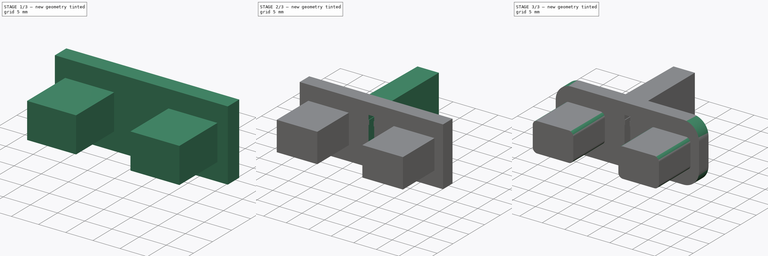
[diagram: build sequence overview — one tinted view per stage of 3, left to right]
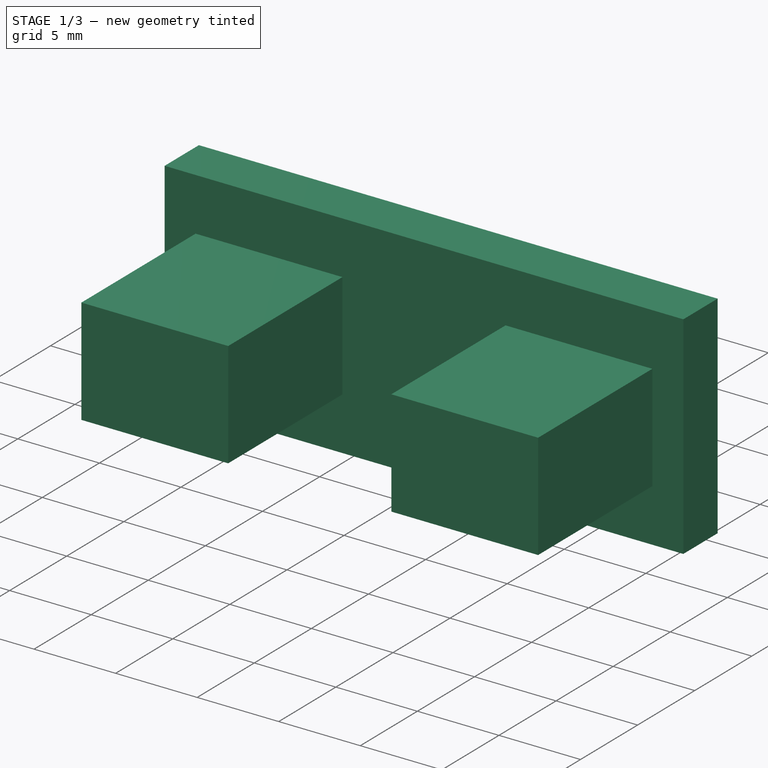
[diagram: stage 1 of 3 — iso view after this stage's code; geometry added in this stage tinted green]
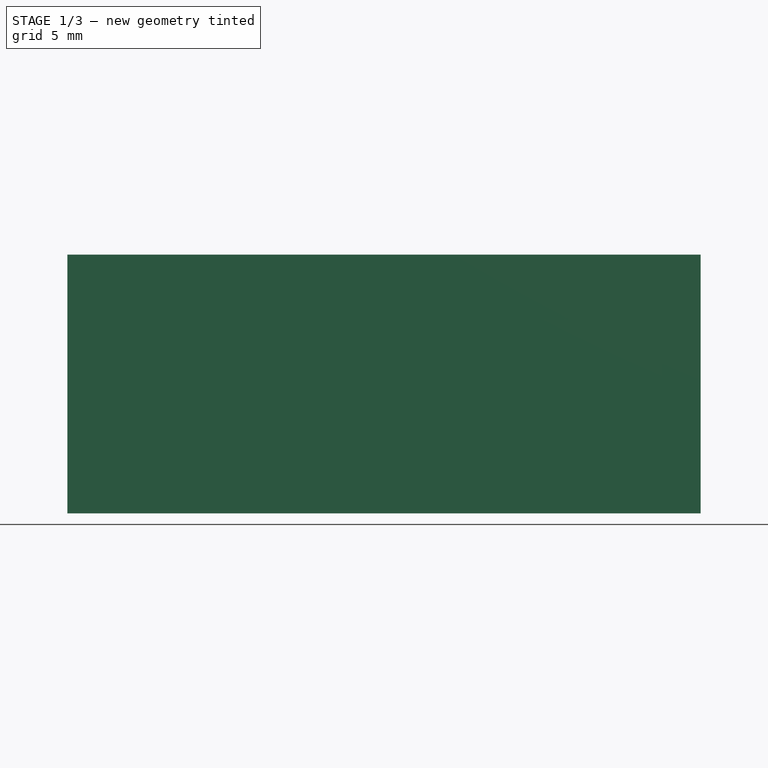
[diagram: stage 1 of 3 — front view after this stage's code; geometry added in this stage tinted green]
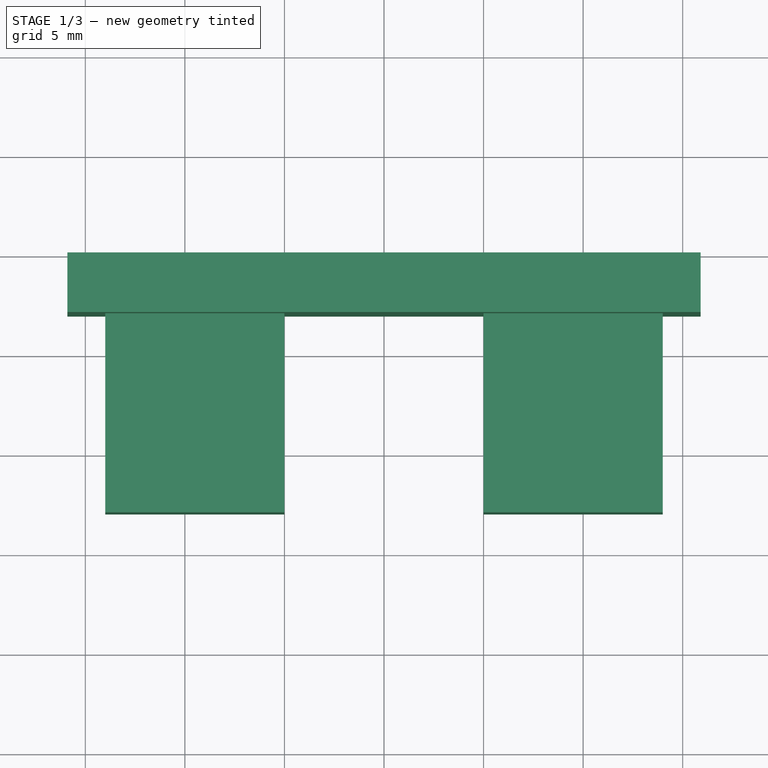
[diagram: stage 1 of 3 — top view after this stage's code; geometry added in this stage tinted green]
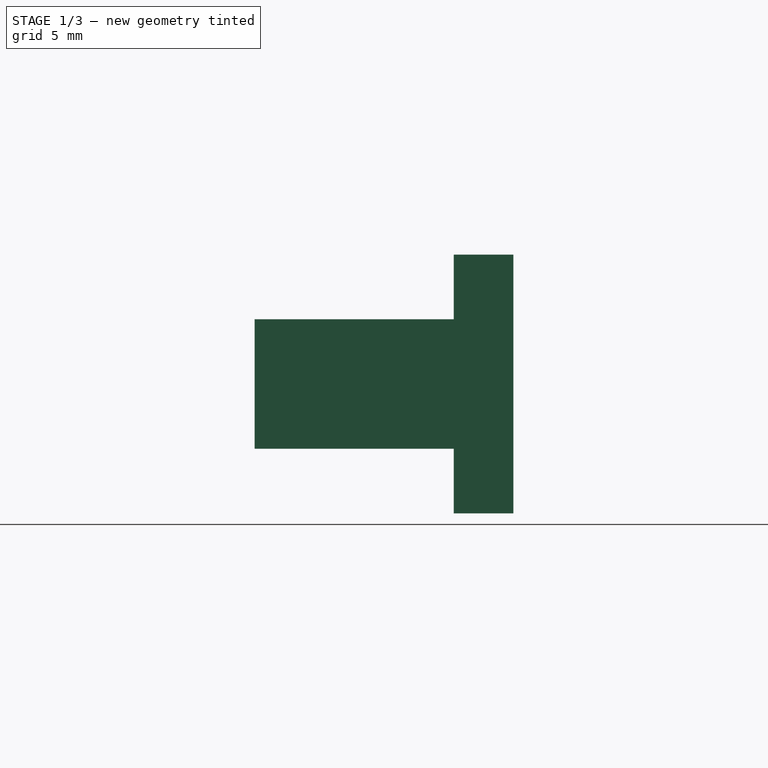
[diagram: stage 1 of 3 — right view after this stage's code; geometry added in this stage tinted green]
FCSTD DOCUMENT  (FreeCAD 1.0R39109 (Git))
Label: BoutonGrillePain
License: All rights reserved
LicenseURL: http://en.wikipedia.org/wiki/All_rights_reserved
objects: Sketcher::SketchObject×4, PartDesign::Pad×3, PartDesign::Fillet×2, PartDesign::Pocket×1, PartDesign::Body×1
note: 27 computed .brp shape members not serialized (recipe doc carries the construction recipe); baked Part::Feature solids carry a one-line shape summary decoded from their .brp

FEATURE [Sketcher::SketchObject] Sketch
  ArcFitTolerance = 1e-06
  AttachmentSupport = -> [XZ_Plane]
  FullyConstrained = true
  MakeInternals = false
  MapMode = 5
  Placement = pos=(0,0,0) rot=(1,0,0;1.5708rad)
  sketch-geometry (5):
    g0: LineSegment StartX=-15.9 StartY=-6.5 StartZ=0 EndX=15.9 EndY=-6.5 EndZ=0
    g1: LineSegment StartX=15.9 StartY=-6.5 StartZ=0 EndX=15.9 EndY=6.5 EndZ=0
    g2: LineSegment StartX=15.9 StartY=6.5 StartZ=0 EndX=-15.9 EndY=6.5 EndZ=0
    g3: LineSegment StartX=-15.9 StartY=6.5 StartZ=0 EndX=-15.9 EndY=-6.5 EndZ=0
    g4: GeomPoint [constr] X=0 Y=0 Z=0
  constraints (12):
    c: Coincident(g0,g1)
    c: Coincident(g1,g2)
    c: Coincident(g2,g3)
    c: Coincident(g3,g0)
    c: Horizontal(g0)
    c: Horizontal(g2)
    c: Vertical(g1)
    c: Vertical(g3)
    c: Symmetric(g2,g0,g4)
    c: Coincident(g4,g-1)
    c: DistanceY(g1,g1) = 13
    c: DistanceX(g0,g0) = 31.8
FEATURE [PartDesign::Pad] Pad
  Direction = (0,-1,2e-16)
  Length = 3
  Length2 = 10
  Placement = pos=(0,0,0) rot=(1,0,0;1.5708rad)
  Profile = -> Sketch
  ReferenceAxis = -> Sketch [N_Axis]
  Suppressed = false
  Type = 0
FEATURE [Sketcher::SketchObject] Sketch001
  ArcFitTolerance = 1e-06
  AttachmentSupport = -> [Pad]
  ExternalGeometry = -> [Pad]
  FullyConstrained = true
  MakeInternals = false
  MapMode = 5
  Placement = pos=(0,-3,0) rot=(1,0,0;1.5708rad)
  sketch-geometry (8):
    g0: LineSegment StartX=-14 StartY=3.25 StartZ=0 EndX=-14 EndY=-3.25 EndZ=0
    g1: LineSegment StartX=-14 StartY=-3.25 StartZ=0 EndX=-5 EndY=-3.25 EndZ=0
    g2: LineSegment StartX=-5 StartY=-3.25 StartZ=0 EndX=-5 EndY=3.25 EndZ=0
    g3: LineSegment StartX=-5 StartY=3.25 StartZ=0 EndX=-14 EndY=3.25 EndZ=0
    g4: LineSegment StartX=14 StartY=3.25 StartZ=0 EndX=5 EndY=3.25 EndZ=0
    g5: LineSegment StartX=5 StartY=3.25 StartZ=0 EndX=5 EndY=-3.25 EndZ=0
    g6: LineSegment StartX=5 StartY=-3.25 StartZ=0 EndX=14 EndY=-3.25 EndZ=0
    g7: LineSegment StartX=14 StartY=-3.25 StartZ=0 EndX=14 EndY=3.25 EndZ=0
  constraints (23):
    c: Coincident(g0,g1)
    c: Coincident(g1,g2)
    c: Coincident(g2,g3)
    c: Coincident(g3,g0)
    c: Vertical(g2)
    c: Horizontal(g1)
    c: Horizontal(g3)
    c: Distance(g0,g2) = 9
    c: Coincident(g4,g5)
    c: Coincident(g5,g6)
    c: Horizontal(g4)
    c: Horizontal(g6)
    c: Vertical(g5)
    c: Vertical(g7)
    c: Horizontal(g1,g5)
    c: Equal(g3,g4)
    c: Coincident(g4,g7)
    c: Coincident(g6,g7)
    c: DistanceY(g0,g0) = 6.5
    c: Horizontal(g2,g4)
    c: Symmetric(g1,g4,g-1)
    c: Vertical(g0)
    c: DistanceX(g0,g6) = 28
FEATURE [PartDesign::Pad] Pad001
  BaseFeature = -> Pad
  Direction = (0,-1,2e-16)
  Length = 10
  Length2 = 10
  Placement = pos=(0,0,0) rot=(1,0,0;1.5708rad)
  Profile = -> Sketch001
  ReferenceAxis = -> Sketch001 [N_Axis]
  Refine = true
  Suppressed = false
  Type = 0
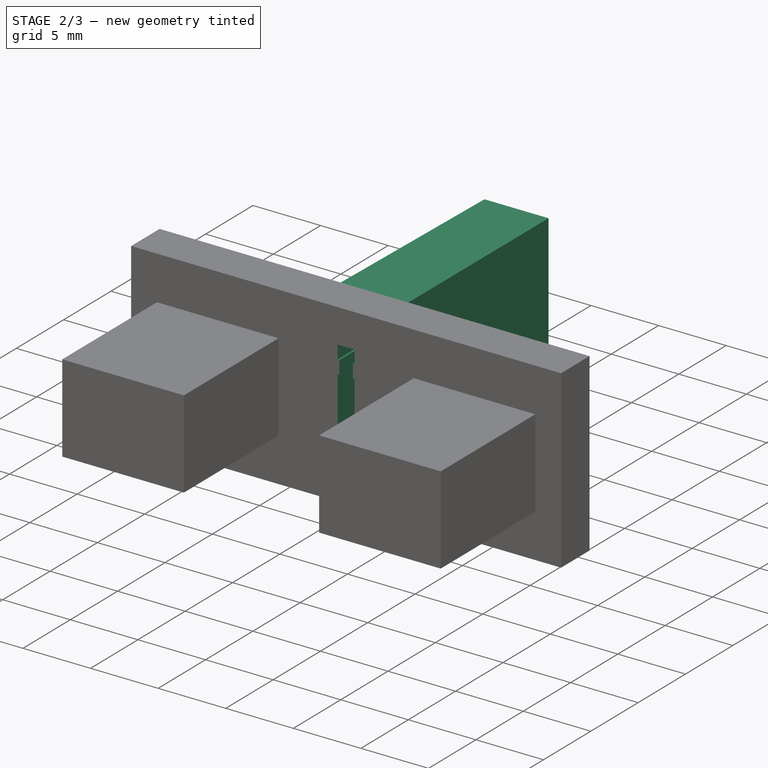
[diagram: stage 2 of 3 — iso view after this stage's code; geometry added in this stage tinted green]
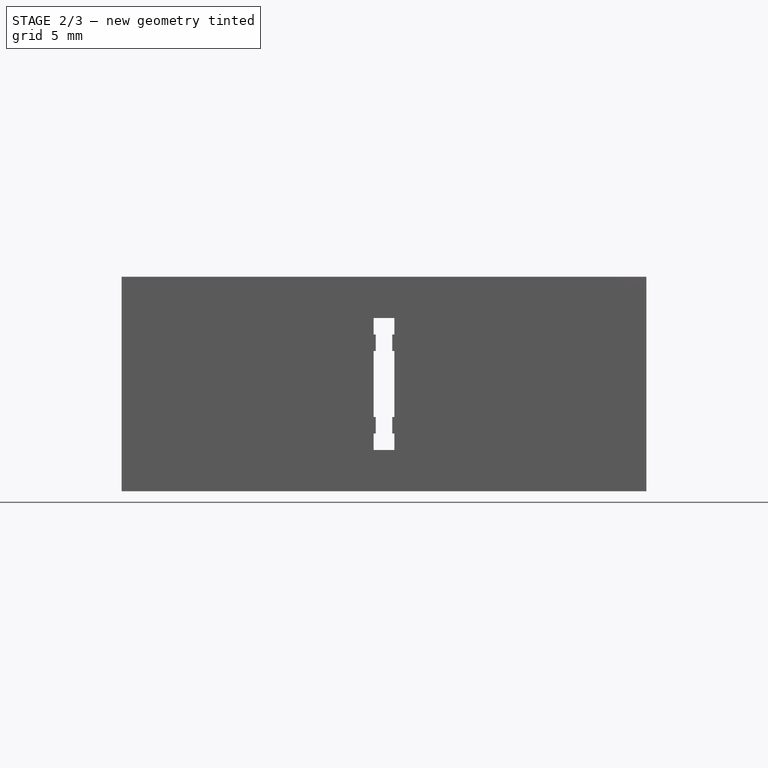
[diagram: stage 2 of 3 — front view after this stage's code; geometry added in this stage tinted green]
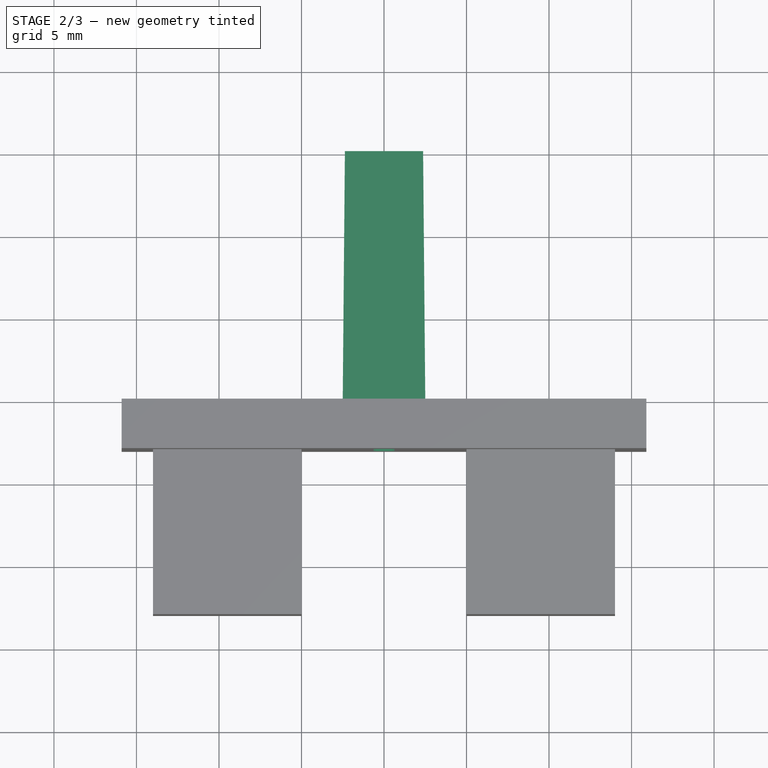
[diagram: stage 2 of 3 — top view after this stage's code; geometry added in this stage tinted green]
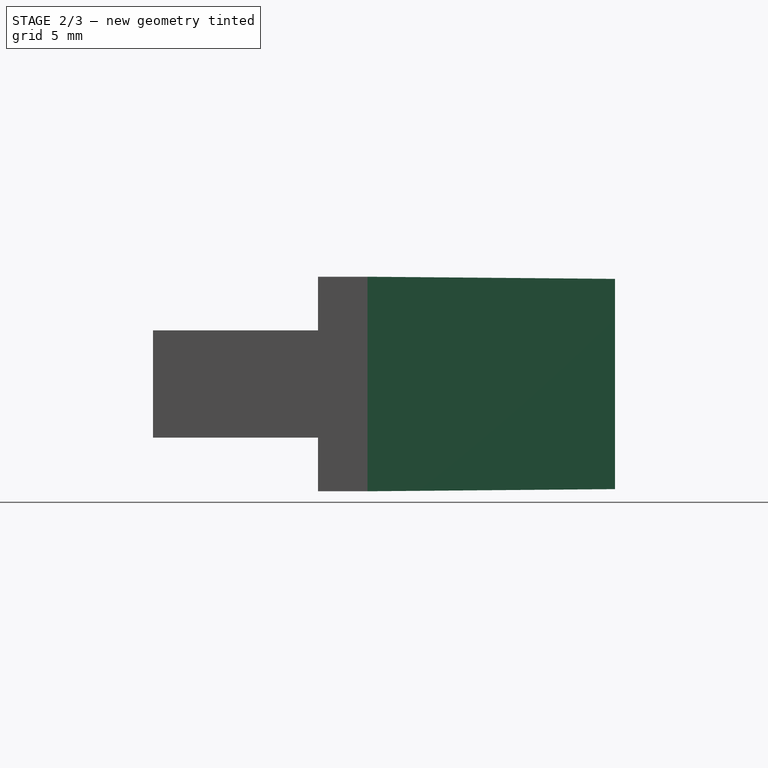
[diagram: stage 2 of 3 — right view after this stage's code; geometry added in this stage tinted green]
FEATURE [Sketcher::SketchObject] Sketch002
  ArcFitTolerance = 1e-06
  AttachmentSupport = -> [Pad001]
  ExternalGeometry = -> [Pad001]
  FullyConstrained = true
  MakeInternals = false
  MapMode = 5
  Placement = pos=(0,0,0) rot=(-1,0,0;1.5708rad)
  sketch-geometry (5):
    g0: LineSegment StartX=2.5 StartY=-6.5 StartZ=0 EndX=2.5 EndY=6.5 EndZ=0
    g1: LineSegment StartX=2.5 StartY=6.5 StartZ=0 EndX=-2.5 EndY=6.5 EndZ=0
    g2: LineSegment StartX=-2.5 StartY=6.5 StartZ=0 EndX=-2.5 EndY=-6.5 EndZ=0
    g3: LineSegment StartX=-2.5 StartY=-6.5 StartZ=0 EndX=2.5 EndY=-6.5 EndZ=0
    g4: GeomPoint [constr] X=0 Y=0 Z=0
  constraints (12):
    c: Coincident(g0,g1)
    c: Coincident(g1,g2)
    c: Coincident(g2,g3)
    c: Coincident(g3,g0)
    c: Vertical(g0)
    c: Vertical(g2)
    c: Horizontal(g1)
    c: Horizontal(g3)
    c: Symmetric(g2,g0,g4)
    c: Coincident(g4,g-1)
    c: Horizontal(g0,g-3)
    c: DistanceX(g1,g1) = 5
FEATURE [PartDesign::Pad] Pad002
  BaseFeature = -> Pad001
  Direction = (0,1,2e-16)
  Length = 15
  Length2 = 10
  Placement = pos=(0,0,0) rot=(1,0,0;1.5708rad)
  Profile = -> Sketch002
  ReferenceAxis = -> Sketch002 [N_Axis]
  Refine = true
  Suppressed = false
  TaperAngle = -0.5
  Type = 0
FEATURE [Sketcher::SketchObject] Sketch003
  ArcFitTolerance = 1e-06
  AttachmentSupport = -> [Pad002]
  FullyConstrained = true
  MakeInternals = false
  MapMode = 5
  Placement = pos=(0,15,3.3e-15) rot=(-1,0,0;1.5708rad)
  sketch-geometry (21):
    g0: LineSegment StartX=-0.625 StartY=-4 StartZ=0 EndX=0.625 EndY=-4 EndZ=0
    g1: LineSegment StartX=0.625 StartY=4 StartZ=0 EndX=-0.625 EndY=4 EndZ=0
    g2: GeomPoint [constr] X=0 Y=0 Z=0
    g3: LineSegment StartX=-0.499997 StartY=3 StartZ=0 EndX=-0.5 EndY=2 EndZ=0
    g4: LineSegment StartX=-0.625 StartY=-2 StartZ=0 EndX=-0.5 EndY=-2 EndZ=0
    g5: LineSegment StartX=-0.5 StartY=-2 StartZ=0 EndX=-0.5 EndY=-3 EndZ=0
    g6: LineSegment StartX=-0.5 StartY=-3 StartZ=0 EndX=-0.625 EndY=-3 EndZ=0
    g7: LineSegment StartX=-0.625 StartY=-3 StartZ=0 EndX=-0.625 EndY=-4 EndZ=0
    g8: LineSegment StartX=-0.625 StartY=4 StartZ=0 EndX=-0.625 EndY=3 EndZ=0
    g9: LineSegment StartX=-0.625 StartY=3 StartZ=0 EndX=-0.499997 EndY=3 EndZ=0
    g10: LineSegment StartX=-0.5 StartY=2 StartZ=0 EndX=-0.625 EndY=2 EndZ=0
    g11: LineSegment StartX=-0.625 StartY=2 StartZ=0 EndX=-0.625 EndY=-2 EndZ=0
    g12: LineSegment StartX=0.625 StartY=3 StartZ=0 EndX=0.625 EndY=4 EndZ=0
    g13: LineSegment StartX=0.5 StartY=3 StartZ=0 EndX=0.625 EndY=3 EndZ=0
    g14: LineSegment StartX=0.5 StartY=2 StartZ=0 EndX=0.5 EndY=3 EndZ=0
    g15: LineSegment StartX=0.625 StartY=2 StartZ=0 EndX=0.5 EndY=2 EndZ=0
    g16: LineSegment StartX=0.625 StartY=-2 StartZ=0 EndX=0.625 EndY=2 EndZ=0
    g17: LineSegment StartX=0.5 StartY=-2 StartZ=0 EndX=0.625 EndY=-2 EndZ=0
    g18: LineSegment StartX=0.5 StartY=-3 StartZ=0 EndX=0.5 EndY=-2 EndZ=0
    g19: LineSegment StartX=0.625 StartY=-4 StartZ=0 EndX=0.625 EndY=-3 EndZ=0
    g20: LineSegment StartX=0.625 StartY=-3 StartZ=0 EndX=0.5 EndY=-3 EndZ=0
  constraints (58):
    c: Coincident(g0,g19)
    c: Coincident(g12,g1)
    c: Coincident(g1,g8)
    c: Coincident(g7,g0)
    c: Horizontal(g0)
    c: Horizontal(g1)
    c: Symmetric(g1,g0,g2)
    c: Distance(g19,g7) = 1.25
    c: Distance(g0,g1) = 8
    c: Coincident(g2,g-1)
    c: Coincident(g9,g3)
    c: Coincident(g3,g10)
    c: Coincident(g11,g4)
    c: Coincident(g4,g5)
    c: Coincident(g5,g6)
    c: Coincident(g6,g7)
    c: Vertical(g7)
    c: Coincident(g8,g9)
    c: Vertical(g8)
    c: Coincident(g10,g11)
    c: Vertical(g11)
    c: Coincident(g13,g12)
    c: Vertical(g12)
    c: Coincident(g14,g13)
    c: Coincident(g15,g14)
    c: Vertical(g14)
    c: Coincident(g16,g15)
    c: Coincident(g17,g16)
    c: Vertical(g16)
    c: Coincident(g18,g17)
    c: Coincident(g20,g18)
    c: Coincident(g19,g20)
    c: Vertical(g19)
    c: Vertical(g18)
    c: Horizontal(g17)
    c: Horizontal(g20)
    c: Vertical(g5)
    c: Vertical(g8,g10)
    c: Vertical(g4,g6)
    c: Vertical(g16,g19)
    c: Horizontal(g4)
    c: Horizontal(g6)
    c: Horizontal(g9)
    c: Horizontal(g10)
    c: Horizontal(g13)
    c: Horizontal(g15)
    c: Horizontal(g3,g13)
    c: Horizontal(g3,g14)
    c: Horizontal(g5,g18)
    c: Symmetric(g4,g15,g2)
    c: DistanceY(g14,g14) = 1
    c: Equal(g3,g14)
    c: Equal(g18,g3)
    c: Vertical(g4,g3)
    c: Vertical(g14,g17)
    c: Symmetric(g3,g17,g2)
    c: DistanceX(g6,g6) = 0.125
    c: DistanceY(g12,g12) = 1
FEATURE [PartDesign::Pocket] Pocket
  BaseFeature = -> Pad002
  Direction = (0,-1,-2e-16)
  Length = 5
  Length2 = 5
  Placement = pos=(0,0,0) rot=(1,0,0;1.5708rad)
  Profile = -> Sketch003
  ReferenceAxis = -> Sketch003 [N_Axis]
  Suppressed = false
  Type = 1
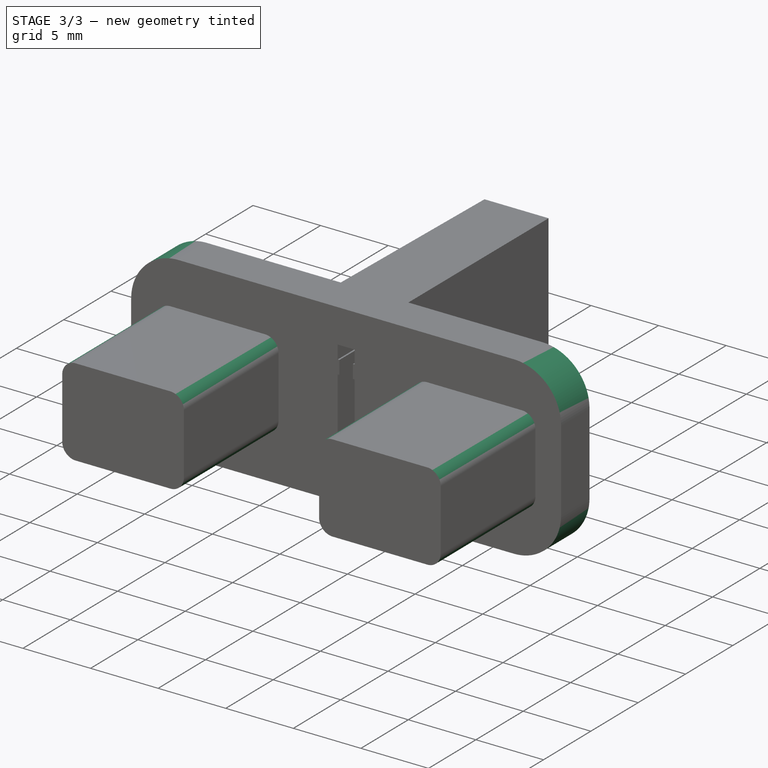
[diagram: stage 3 of 3 — iso view after this stage's code; geometry added in this stage tinted green]
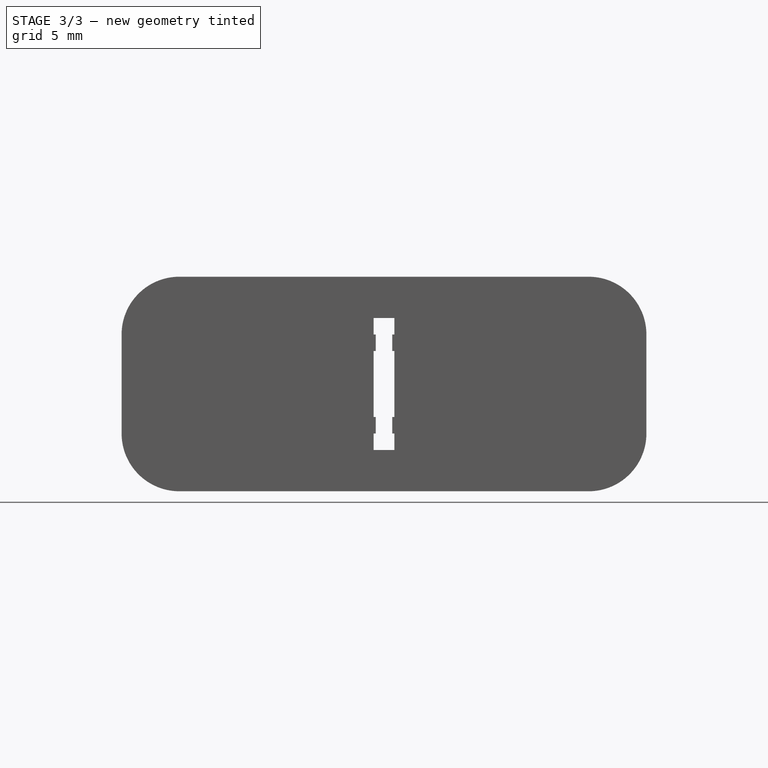
[diagram: stage 3 of 3 — front view after this stage's code; geometry added in this stage tinted green]
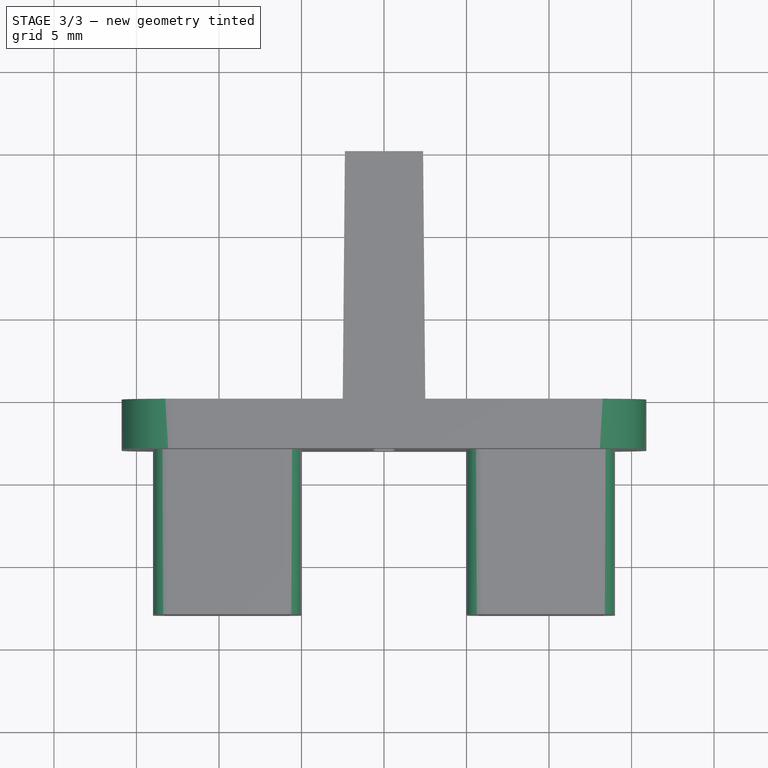
[diagram: stage 3 of 3 — top view after this stage's code; geometry added in this stage tinted green]
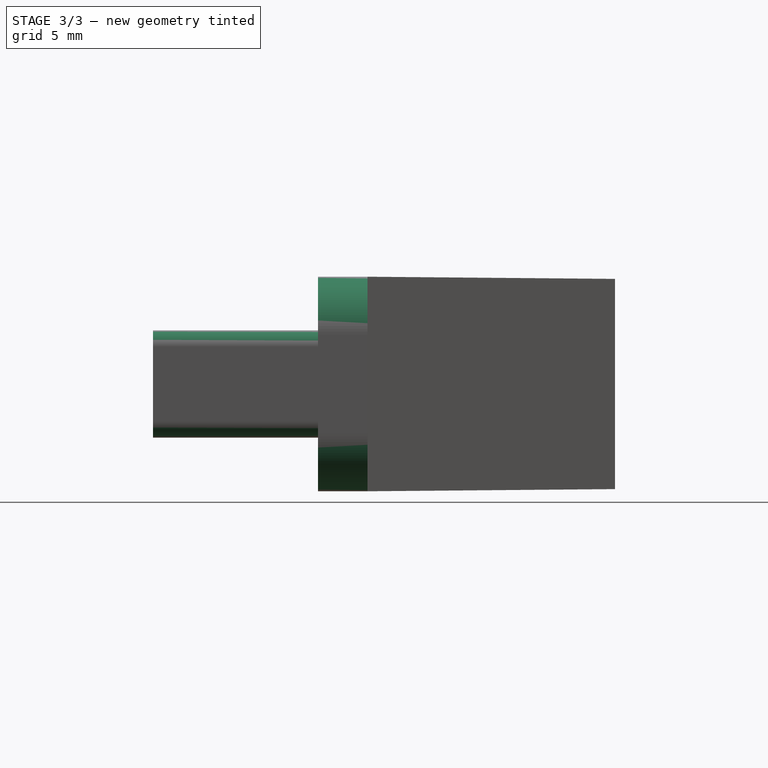
[diagram: stage 3 of 3 — right view after this stage's code; geometry added in this stage tinted green]
FEATURE [PartDesign::Fillet] Fillet
  Base = -> Pocket [Edge2,Edge1,Edge7,Edge10]
  BaseFeature = -> Pocket
  Placement = pos=(0,0,0) rot=(1,0,0;1.5708rad)
  Radius = 3.5
  SupportTransform = false
  Suppressed = false
  UseAllEdges = false
FEATURE [PartDesign::Fillet] Fillet001
  Base = -> Fillet [Edge92,Edge88,Edge90,Edge118,Edge115,Edge87,Edge120,Edge116]
  BaseFeature = -> Fillet
  Placement = pos=(0,0,0) rot=(1,0,0;1.5708rad)
  Radius = 1
  SupportTransform = false
  Suppressed = false
  UseAllEdges = false
FEATURE [PartDesign::Body] Body
  AllowCompound = false
  Group = -> [Sketch,Pad,Sketch001,Pad001,Sketch002,Pad002,Sketch003,Pocket,Fillet,Fillet001]
  Origin = -> Origin
  Tip = -> Fillet001
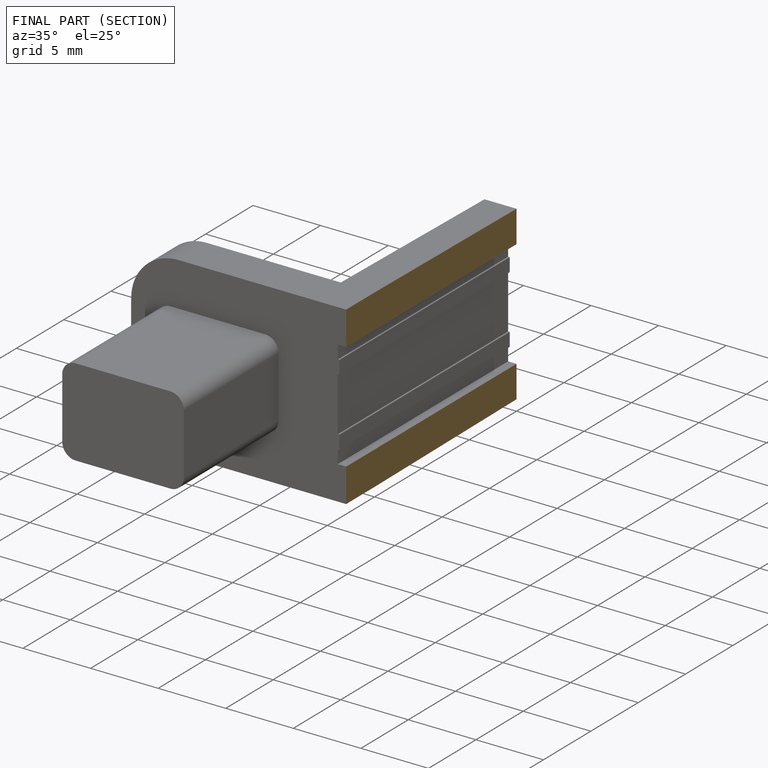
[diagram: finished part — half-section view (interior)]
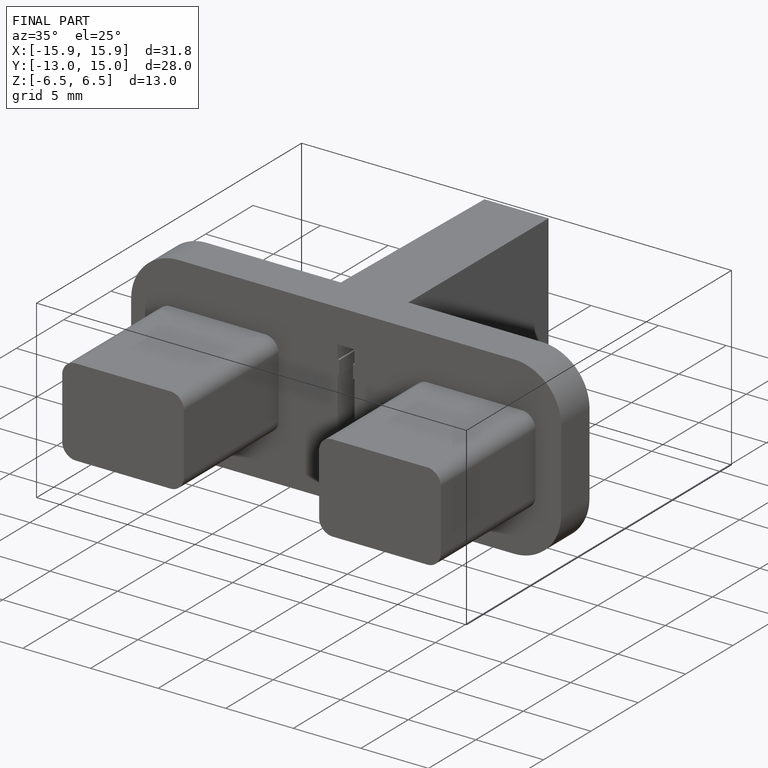
[diagram: finished part — iso view with bounding-box wireframe]
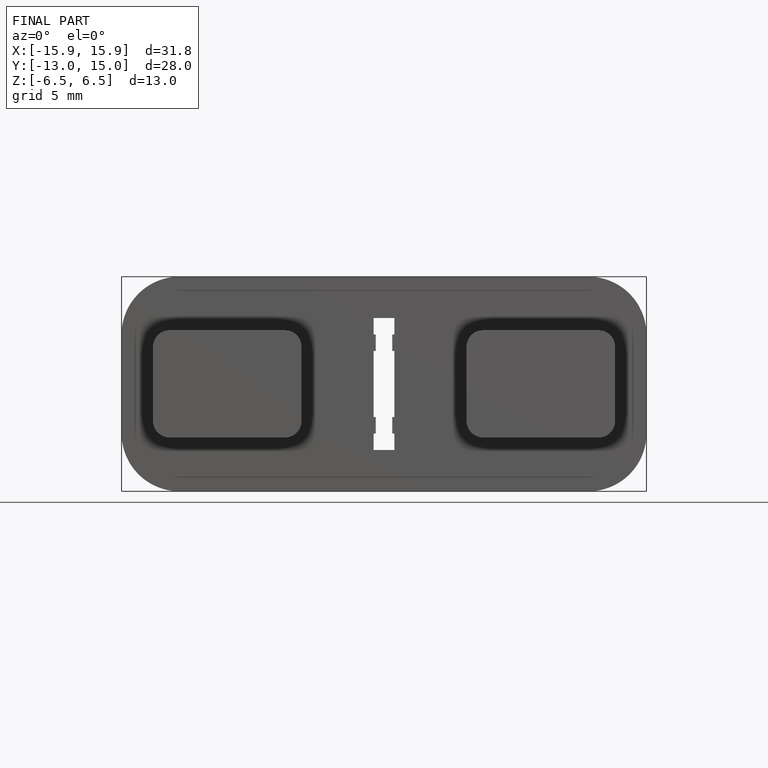
[diagram: finished part — front view with bounding-box wireframe]
